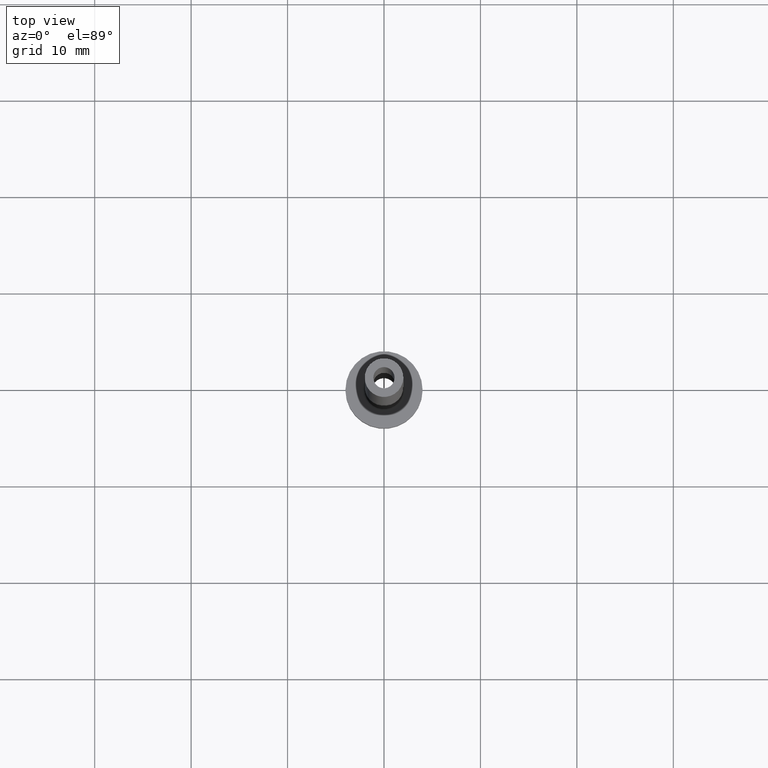
[diagram: clean part render]
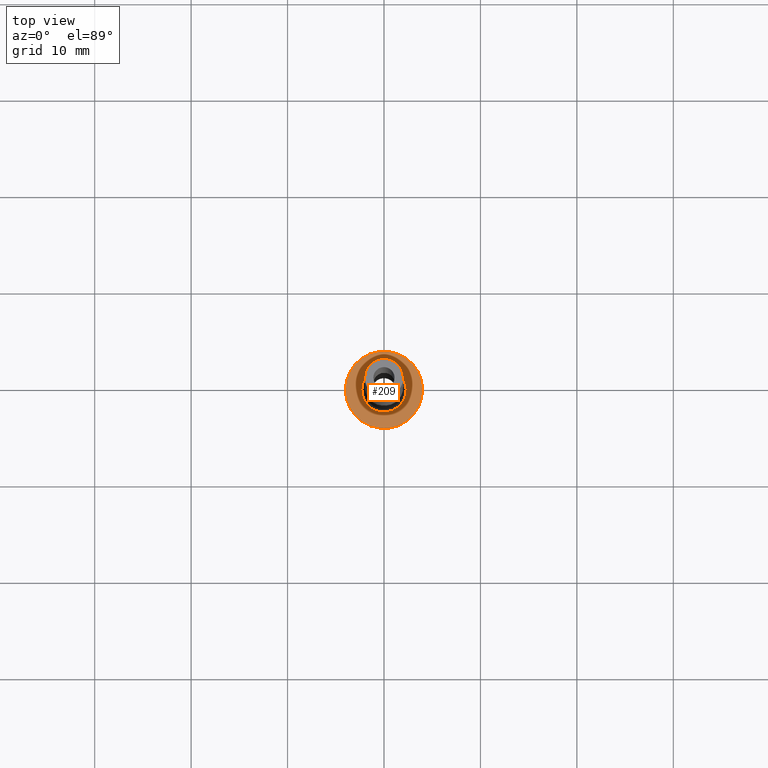
[diagram: same view with one face highlighted and labeled with its STEP entity id]
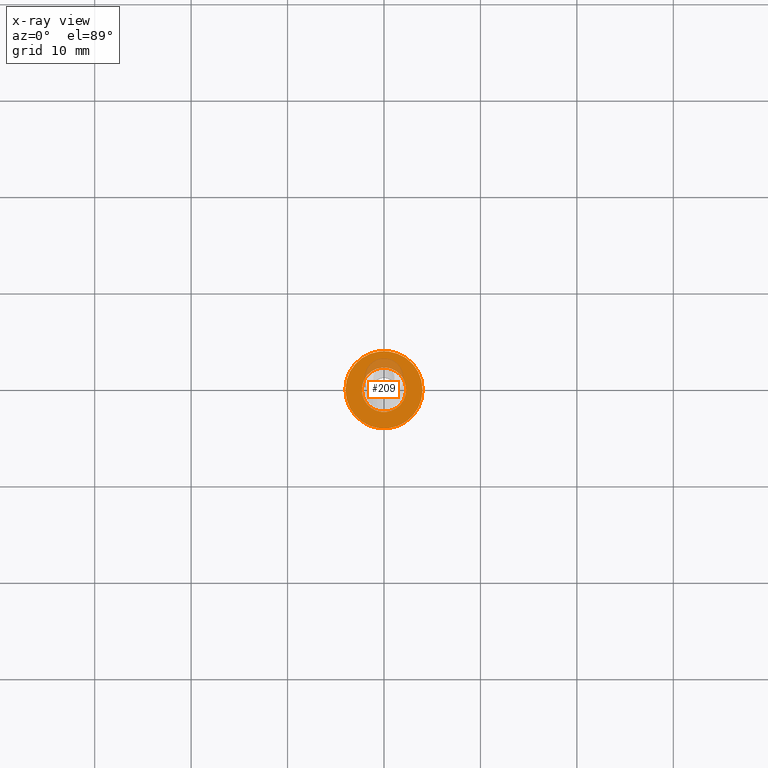
[diagram: x-ray of the same camera — body ghosted, the highlighted face saturated]
A machine part, top view. The second image highlights one B-rep face of the part: STEP entity #209.
The next image is the same camera in x-ray: the body ghosted, the highlighted face saturated — about 10% of this face is hidden behind the body in this view.
In plain terms, the highlighted planar face has unit normal (0, 0, 1).
Its self-contained STEP definition (entity closure, byte-faithful):
#6 = DIRECTION ( 'NONE',  ( -0.000000000000000000, -0.000000000000000000, -1.000000000000000000 ) ) ;
#11 = DIRECTION ( 'NONE',  ( 0.000000000000000000, 0.000000000000000000, 1.000000000000000000 ) ) ;
#20 = CIRCLE ( 'NONE', #101, 2.299999999999999822 ) ;
#23 = FACE_BOUND ( 'NONE', #350, .T. ) ;
#68 = EDGE_CURVE ( 'NONE', #167, #86, #20, .T. ) ;
#79 = DIRECTION ( 'NONE',  ( -0.000000000000000000, -0.000000000000000000, -1.000000000000000000 ) ) ;
#81 = DIRECTION ( 'NONE',  ( 1.000000000000000000, 0.000000000000000000, 0.000000000000000000 ) ) ;
#86 = VERTEX_POINT ( 'NONE', #107 ) ;
#88 = ORIENTED_EDGE ( 'NONE', *, *, #103, .T. ) ;
#93 = DIRECTION ( 'NONE',  ( 0.000000000000000000, 0.000000000000000000, 1.000000000000000000 ) ) ;
#101 = AXIS2_PLACEMENT_3D ( 'NONE', #438, #79, #429 ) ;
#103 = EDGE_CURVE ( 'NONE', #446, #214, #119, .T. ) ;
#107 = CARTESIAN_POINT ( 'NONE',  ( -2.299999999999999822, 2.816687638038912056E-16, 2.999999999999998668 ) ) ;
#113 = ORIENTED_EDGE ( 'NONE', *, *, #339, .T. ) ;
#119 = CIRCLE ( 'NONE', #387, 4.000000000000000000 ) ;
#120 = ORIENTED_EDGE ( 'NONE', *, *, #68, .T. ) ;
#122 = AXIS2_PLACEMENT_3D ( 'NONE', #158, #93, #443 ) ;
#139 = CARTESIAN_POINT ( 'NONE',  ( 0.000000000000000000, 0.000000000000000000, 3.000000000000000000 ) ) ;
#158 = CARTESIAN_POINT ( 'NONE',  ( 0.000000000000000000, 0.000000000000000000, 3.000000000000000000 ) ) ;
#167 = VERTEX_POINT ( 'NONE', #196 ) ;
#196 = CARTESIAN_POINT ( 'NONE',  ( 2.299999999999999822, 0.000000000000000000, 2.999999999999998668 ) ) ;
#209 = ADVANCED_FACE ( 'NONE', ( #23, #413 ), #237, .T. ) ;
#214 = VERTEX_POINT ( 'NONE', #414 ) ;
#232 = CARTESIAN_POINT ( 'NONE',  ( 0.000000000000000000, 0.000000000000000000, 3.000000000000000000 ) ) ;
#237 = PLANE ( 'NONE',  #122 ) ;
#248 = AXIS2_PLACEMENT_3D ( 'NONE', #232, #11, #295 ) ;
#268 = DIRECTION ( 'NONE',  ( 1.000000000000000000, 0.000000000000000000, 0.000000000000000000 ) ) ;
#295 = DIRECTION ( 'NONE',  ( 1.000000000000000000, 0.000000000000000000, 0.000000000000000000 ) ) ;
#301 = CIRCLE ( 'NONE', #411, 2.299999999999999822 ) ;
#321 = CIRCLE ( 'NONE', #248, 4.000000000000000000 ) ;
#336 = DIRECTION ( 'NONE',  ( 0.000000000000000000, 0.000000000000000000, 1.000000000000000000 ) ) ;
#339 = EDGE_CURVE ( 'NONE', #86, #167, #301, .T. ) ;
#350 = EDGE_LOOP ( 'NONE', ( #120, #113 ) ) ;
#384 = EDGE_CURVE ( 'NONE', #214, #446, #321, .T. ) ;
#387 = AXIS2_PLACEMENT_3D ( 'NONE', #139, #336, #81 ) ;
#396 = CARTESIAN_POINT ( 'NONE',  ( 0.000000000000000000, 0.000000000000000000, 3.000000000000000000 ) ) ;
#399 = CARTESIAN_POINT ( 'NONE',  ( 4.000000000000000000, 4.898587196589412829E-16, 3.000000000000000000 ) ) ;
#411 = AXIS2_PLACEMENT_3D ( 'NONE', #396, #6, #268 ) ;
#413 = FACE_OUTER_BOUND ( 'NONE', #453, .T. ) ;
#414 = CARTESIAN_POINT ( 'NONE',  ( -4.000000000000000000, 0.000000000000000000, 3.000000000000000000 ) ) ;
#429 = DIRECTION ( 'NONE',  ( 1.000000000000000000, 0.000000000000000000, 0.000000000000000000 ) ) ;
#438 = CARTESIAN_POINT ( 'NONE',  ( 0.000000000000000000, 0.000000000000000000, 3.000000000000000000 ) ) ;
#441 = ORIENTED_EDGE ( 'NONE', *, *, #384, .T. ) ;
#443 = DIRECTION ( 'NONE',  ( 1.000000000000000000, 0.000000000000000000, -0.000000000000000000 ) ) ;
#446 = VERTEX_POINT ( 'NONE', #399 ) ;
#453 = EDGE_LOOP ( 'NONE', ( #441, #88 ) ) ;